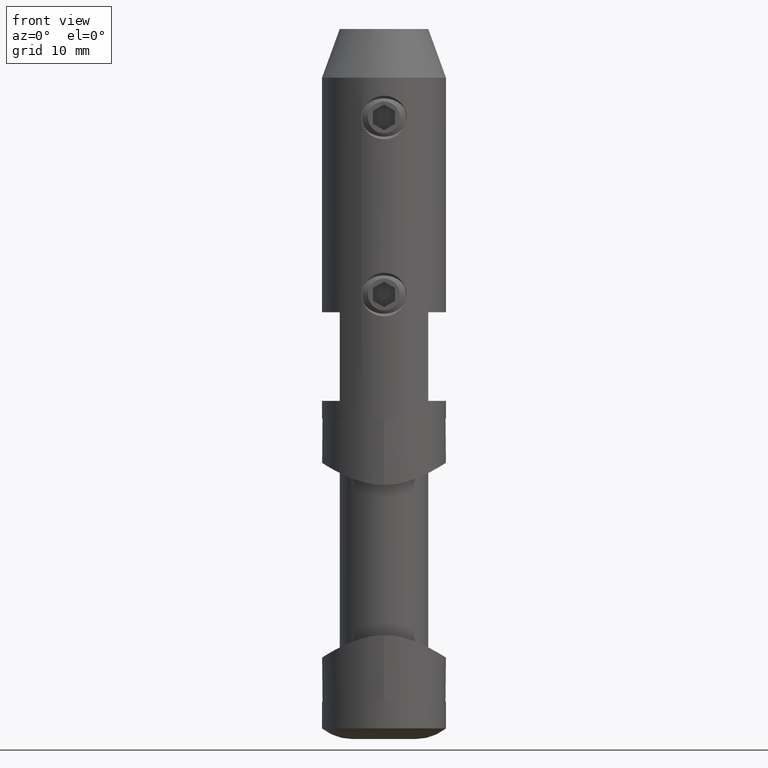
[diagram: clean part render]
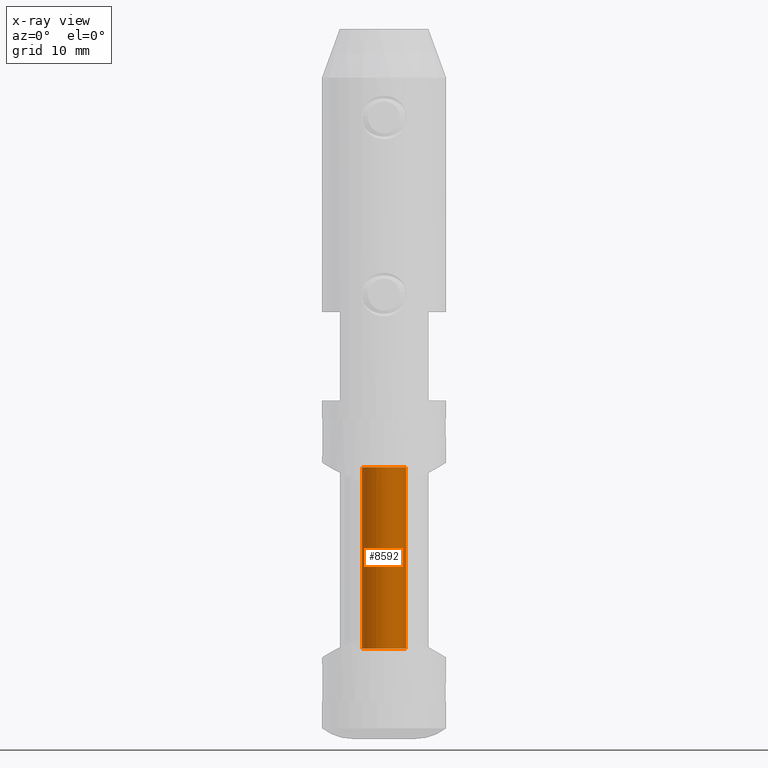
[diagram: x-ray — body ghosted, one internal face saturated and labeled with its STEP entity id]
A machine part, front view, then the same camera in x-ray: the body is ghosted and one INTERNAL B-rep face — a face not visible from any outside direction — is saturated and labeled: STEP entity #8592.
In plain terms, the highlighted cylindrical surface (edge-blend (fillet) strip) has radius 2.5 mm, axis along (0, 0, 1).
Its self-contained STEP definition (entity closure, byte-faithful):
#26 = CARTESIAN_POINT ( 'NONE',  ( 0.000000000000000000, 0.000000000000000000, 13.00000000000000533 ) ) ;
#1400 = CARTESIAN_POINT ( 'NONE',  ( 2.499999999999992895, 0.000000000000000000, 13.49999999999999822 ) ) ;
#1419 = DIRECTION ( 'NONE',  ( 1.000000000000000000, 0.000000000000000000, 0.000000000000000000 ) ) ;
#1489 = EDGE_CURVE ( 'NONE', #7159, #7082, #13964, .T. ) ;
#3316 = ORIENTED_EDGE ( 'NONE', *, *, #1489, .T. ) ;
#3321 = CARTESIAN_POINT ( 'NONE',  ( -2.499999999999992895, 3.061616997868373773E-16, 13.49999999999999822 ) ) ;
#4071 = VECTOR ( 'NONE', #15581, 1000.000000000000000 ) ;
#4209 = VERTEX_POINT ( 'NONE', #6298 ) ;
#4708 = VECTOR ( 'NONE', #9190, 1000.000000000000000 ) ;
#5776 = AXIS2_PLACEMENT_3D ( 'NONE', #26, #12510, #15263 ) ;
#6265 = AXIS2_PLACEMENT_3D ( 'NONE', #13836, #18602, #9143 ) ;
#6298 = CARTESIAN_POINT ( 'NONE',  ( -2.499999999999995559, 3.061616997868377718E-16, -7.500000000000000000 ) ) ;
#7082 = VERTEX_POINT ( 'NONE', #9784 ) ;
#7159 = VERTEX_POINT ( 'NONE', #10193 ) ;
#8488 = EDGE_CURVE ( 'NONE', #4209, #7159, #9803, .T. ) ;
#8592 = ADVANCED_FACE ( 'NONE', ( #15062 ), #10972, .F. ) ;
#9143 = DIRECTION ( 'NONE',  ( 1.000000000000000000, 0.000000000000000000, 0.000000000000000000 ) ) ;
#9190 = DIRECTION ( 'NONE',  ( -0.000000000000000000, -0.000000000000000000, 1.000000000000000000 ) ) ;
#9784 = CARTESIAN_POINT ( 'NONE',  ( 2.499999999999992895, 0.000000000000000000, 13.00000000000000533 ) ) ;
#9803 = LINE ( 'NONE', #3321, #4071 ) ;
#10008 = ORIENTED_EDGE ( 'NONE', *, *, #17388, .F. ) ;
#10193 = CARTESIAN_POINT ( 'NONE',  ( -2.499999999999992895, 3.061616997868373773E-16, 13.00000000000000533 ) ) ;
#10409 = ORIENTED_EDGE ( 'NONE', *, *, #8488, .T. ) ;
#10683 = CARTESIAN_POINT ( 'NONE',  ( 0.000000000000000000, 0.000000000000000000, -7.500000000000000000 ) ) ;
#10972 = CYLINDRICAL_SURFACE ( 'NONE', #6265, 2.499999999999992895 ) ;
#11119 = ORIENTED_EDGE ( 'NONE', *, *, #11312, .F. ) ;
#11312 = EDGE_CURVE ( 'NONE', #12643, #7082, #16506, .T. ) ;
#12341 = CIRCLE ( 'NONE', #19624, 2.499999999999995559 ) ;
#12510 = DIRECTION ( 'NONE',  ( 0.000000000000000000, 0.000000000000000000, 1.000000000000000000 ) ) ;
#12643 = VERTEX_POINT ( 'NONE', #19211 ) ;
#13836 = CARTESIAN_POINT ( 'NONE',  ( 0.000000000000000000, 0.000000000000000000, 13.49999999999999822 ) ) ;
#13964 = CIRCLE ( 'NONE', #5776, 2.499999999999992895 ) ;
#15062 = FACE_OUTER_BOUND ( 'NONE', #19023, .T. ) ;
#15263 = DIRECTION ( 'NONE',  ( 1.000000000000000000, 0.000000000000000000, 0.000000000000000000 ) ) ;
#15581 = DIRECTION ( 'NONE',  ( -0.000000000000000000, -0.000000000000000000, 1.000000000000000000 ) ) ;
#16506 = LINE ( 'NONE', #1400, #4708 ) ;
#17388 = EDGE_CURVE ( 'NONE', #4209, #12643, #12341, .T. ) ;
#18602 = DIRECTION ( 'NONE',  ( -0.000000000000000000, -0.000000000000000000, 1.000000000000000000 ) ) ;
#19023 = EDGE_LOOP ( 'NONE', ( #10008, #10409, #3316, #11119 ) ) ;
#19211 = CARTESIAN_POINT ( 'NONE',  ( 2.499999999999995559, 0.000000000000000000, -7.500000000000000000 ) ) ;
#19624 = AXIS2_PLACEMENT_3D ( 'NONE', #10683, #19904, #1419 ) ;
#19904 = DIRECTION ( 'NONE',  ( -0.000000000000000000, -0.000000000000000000, 1.000000000000000000 ) ) ;